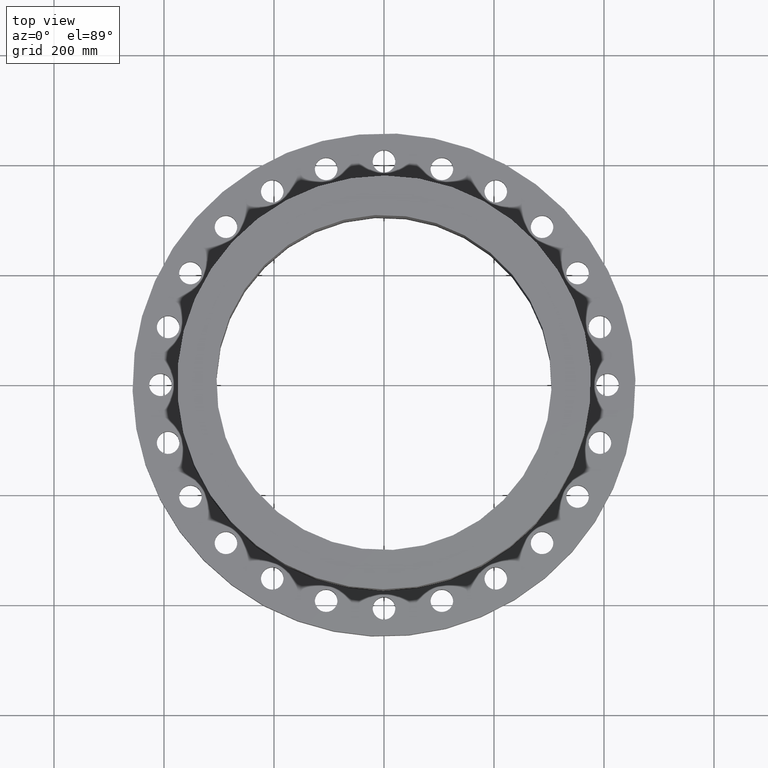
[diagram: clean part render]
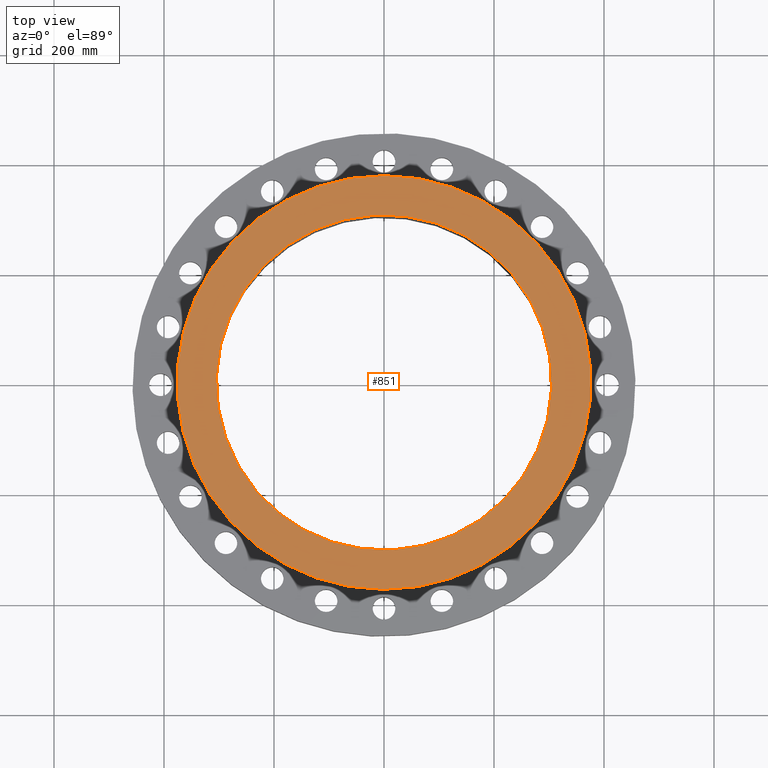
[diagram: same view with one face highlighted and labeled with its STEP entity id]
A machine part, top view. The second image highlights one B-rep face of the part: STEP entity #851.
In plain terms, the highlighted planar face has unit normal (0, 0, -1).
Its self-contained STEP definition (entity closure, byte-faithful):
#795=AXIS2_PLACEMENT_3D('Circle Axis2P3D',#793,#794,$) ;
#814=AXIS2_PLACEMENT_3D('Circle Axis2P3D',#812,#813,$) ;
#827=AXIS2_PLACEMENT_3D('Plane Axis2P3D',#824,#825,#826) ;
#835=AXIS2_PLACEMENT_3D('Circle Axis2P3D',#833,#834,$) ;
#844=AXIS2_PLACEMENT_3D('Circle Axis2P3D',#842,#843,$) ;
#790=CARTESIAN_POINT('Vertex',(7.10029222676,12.9969977416,11.9375)) ;
#793=CARTESIAN_POINT('Axis2P3D Location',(0.,0.,11.9375)) ;
#797=CARTESIAN_POINT('Vertex',(-7.10029222676,-12.9969977416,11.9375)) ;
#812=CARTESIAN_POINT('Axis2P3D Location',(0.,0.,11.9375)) ;
#824=CARTESIAN_POINT('Axis2P3D Location',(0.,14.8100000001,11.9375)) ;
#833=CARTESIAN_POINT('Axis2P3D Location',(0.,0.,11.9375)) ;
#837=CARTESIAN_POINT('Vertex',(-5.75310646327,-10.5309907427,11.9375)) ;
#839=CARTESIAN_POINT('Vertex',(5.75310646327,10.5309907427,11.9375)) ;
#842=CARTESIAN_POINT('Axis2P3D Location',(0.,0.,11.9375)) ;
#794=DIRECTION('Axis2P3D Direction',(0.,0.,-0.0393700787402)) ;
#813=DIRECTION('Axis2P3D Direction',(0.,0.,-0.0393700787402)) ;
#825=DIRECTION('Axis2P3D Direction',(0.,0.,-0.0393700787402)) ;
#826=DIRECTION('Axis2P3D XDirection',(0.0393700787402,0.,0.)) ;
#834=DIRECTION('Axis2P3D Direction',(0.,0.,-0.0393700787402)) ;
#843=DIRECTION('Axis2P3D Direction',(0.,0.,-0.0393700787402)) ;
#830=ORIENTED_EDGE('',*,*,#799,.F.) ;
#831=ORIENTED_EDGE('',*,*,#816,.F.) ;
#848=ORIENTED_EDGE('',*,*,#841,.T.) ;
#849=ORIENTED_EDGE('',*,*,#846,.T.) ;
#850=FACE_BOUND('',#847,.T.) ;
#851=ADVANCED_FACE('PartBody',(#832,#850),#828,.F.) ;
#796=CIRCLE('generated circle',#795,14.8100000001) ;
#815=CIRCLE('generated circle',#814,14.8100000001) ;
#836=CIRCLE('generated circle',#835,12.) ;
#845=CIRCLE('generated circle',#844,12.) ;
#799=EDGE_CURVE('',#791,#798,#796,.T.) ;
#816=EDGE_CURVE('',#798,#791,#815,.T.) ;
#841=EDGE_CURVE('',#838,#840,#836,.T.) ;
#846=EDGE_CURVE('',#840,#838,#845,.T.) ;
#829=EDGE_LOOP('',(#830,#831)) ;
#847=EDGE_LOOP('',(#848,#849)) ;
#832=FACE_OUTER_BOUND('',#829,.T.) ;
#828=PLANE('',#827) ;
#791=VERTEX_POINT('',#790) ;
#798=VERTEX_POINT('',#797) ;
#838=VERTEX_POINT('',#837) ;
#840=VERTEX_POINT('',#839) ;